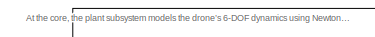
[diagram: root canvas - part 1/3, top left region]
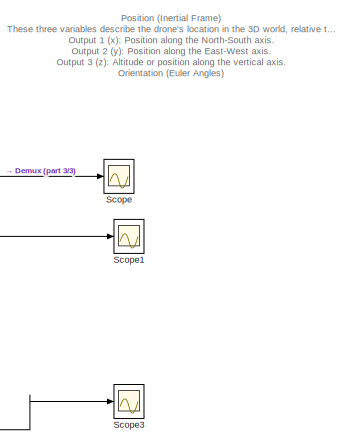
[diagram: root canvas - part 2/3, middle right region]
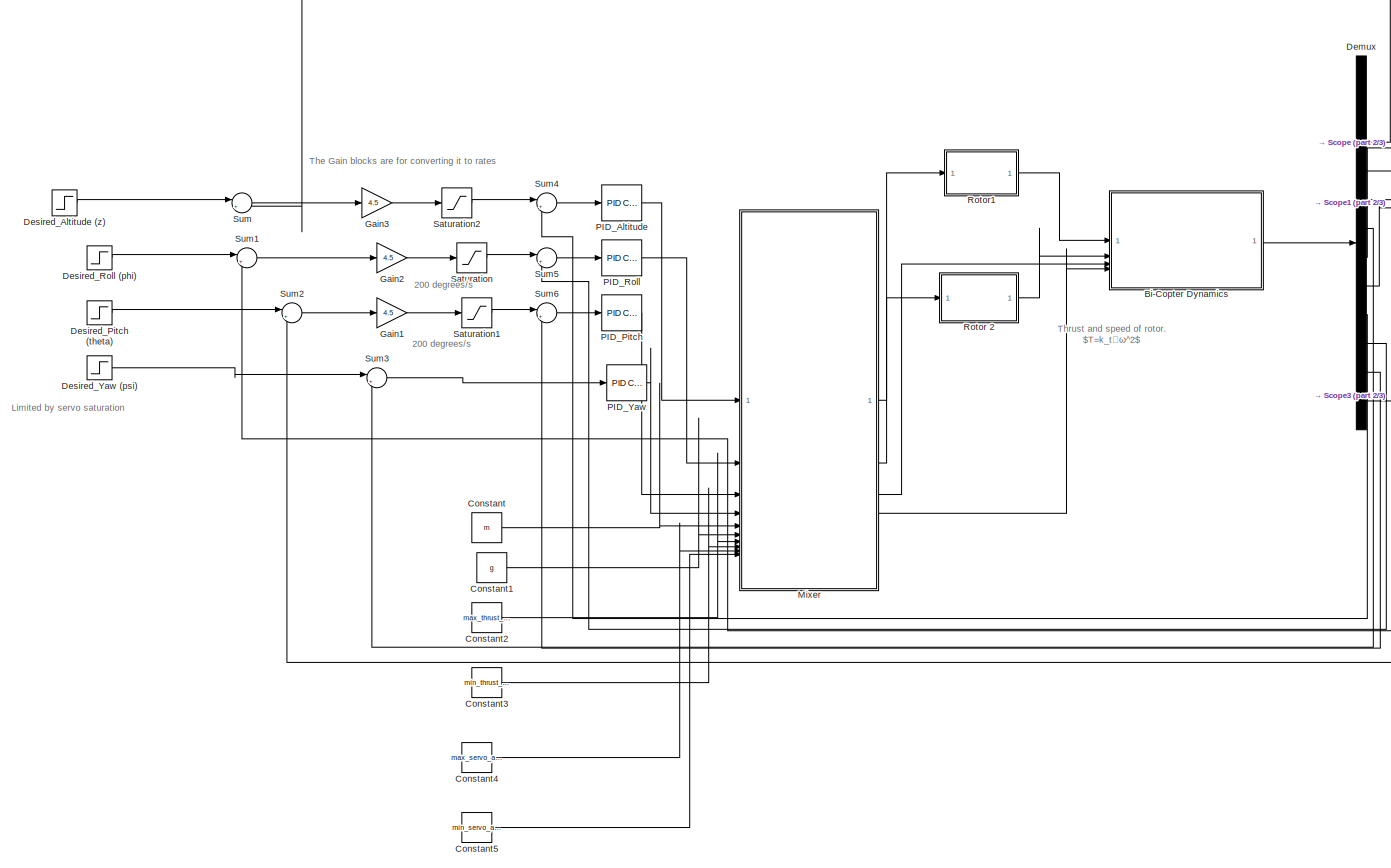
[diagram: root canvas - part 3/3, most of the canvas]
MODEL slx_90198cb23fdc
KIND model
CONFIG AbsTol = auto
CONFIG EnableMultiTasking = off
CONFIG FixedStep = auto
CONFIG MaxStep = auto
CONFIG MinStep = auto
CONFIG RelTol = 1e-3
CONFIG SampleTimeConstraint = Unconstrained
CONFIG SolverName = VariableStepAuto
CONFIG StartTime = 0.0
CONFIG StopTime = 10.0
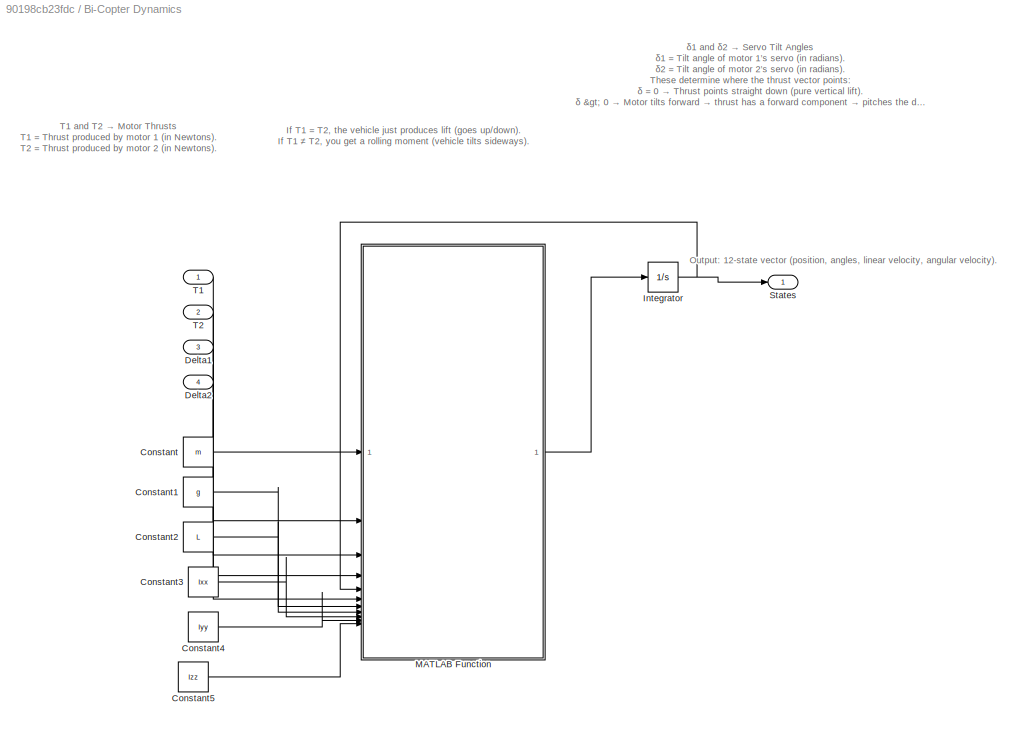
BLOCK [SubSystem] Bi-Copter Dynamics
BLOCK [Constant] Bi-Copter Dynamics/Constant
  Value = m
BLOCK [Constant] Bi-Copter Dynamics/Constant1
  Value = g
BLOCK [Constant] Bi-Copter Dynamics/Constant2
  Value = L
BLOCK [Constant] Bi-Copter Dynamics/Constant3
  Value = Ixx
BLOCK [Constant] Bi-Copter Dynamics/Constant4
  Value = Iyy
BLOCK [Constant] Bi-Copter Dynamics/Constant5
  Value = Izz
BLOCK [Inport] Bi-Copter Dynamics/Delta1
  Port = 3
BLOCK [Inport] Bi-Copter Dynamics/Delta2
  Port = 4
BLOCK [Integrator] Bi-Copter Dynamics/Integrator
  InitialCondition = initial_states
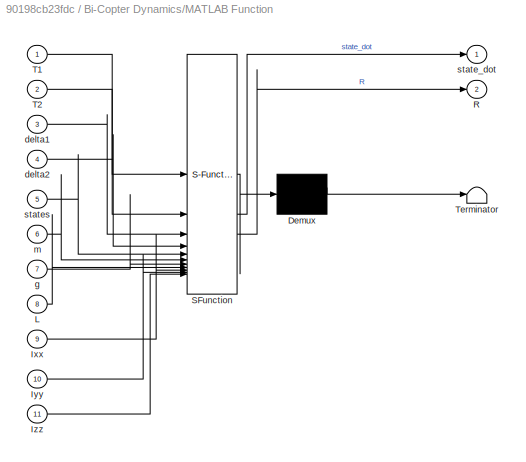
BLOCK [SubSystem] Bi-Copter Dynamics/MATLAB Function
  ErrorFcn = Stateflow.Translate.translate
  PermitHierarchicalResolution = ExplicitOnly
  SFBlockType = MATLAB Function
  TreatAsAtomicUnit = on
BLOCK [Demux] Bi-Copter Dynamics/MATLAB Function/ Demux 
  Outputs = 1
BLOCK [S-Function] Bi-Copter Dynamics/MATLAB Function/ SFunction 
  EnableBusSupport = off
  FunctionName = sf_sfun
  PortCounts = [11 3]
  SFcnIsStateOwnerBlock = off
  SFunctionDeploymentMode = off
  Tag = Stateflow S-Function 2
BLOCK [Terminator] Bi-Copter Dynamics/MATLAB Function/ Terminator 
BLOCK [Inport] Bi-Copter Dynamics/MATLAB Function/Ixx
  Port = 9
BLOCK [Inport] Bi-Copter Dynamics/MATLAB Function/Iyy
  Port = 10
BLOCK [Inport] Bi-Copter Dynamics/MATLAB Function/Izz
  Port = 11
BLOCK [Inport] Bi-Copter Dynamics/MATLAB Function/L
  Port = 8
BLOCK [Outport] Bi-Copter Dynamics/MATLAB Function/R
  Port = 2
BLOCK [Inport] Bi-Copter Dynamics/MATLAB Function/T1
BLOCK [Inport] Bi-Copter Dynamics/MATLAB Function/T2
  Port = 2
BLOCK [Inport] Bi-Copter Dynamics/MATLAB Function/delta1
  Port = 3
BLOCK [Inport] Bi-Copter Dynamics/MATLAB Function/delta2
  Port = 4
BLOCK [Inport] Bi-Copter Dynamics/MATLAB Function/g
  Port = 7
BLOCK [Inport] Bi-Copter Dynamics/MATLAB Function/m
  Port = 6
BLOCK [Outport] Bi-Copter Dynamics/MATLAB Function/state_dot
BLOCK [Inport] Bi-Copter Dynamics/MATLAB Function/states
  Port = 5
BLOCK [Outport] Bi-Copter Dynamics/States
BLOCK [Inport] Bi-Copter Dynamics/T1
BLOCK [Inport] Bi-Copter Dynamics/T2
  Port = 2
BLOCK [Constant] Constant
  Value = m
BLOCK [Constant] Constant1
  Value = g
BLOCK [Constant] Constant2
  Value = max_thrust_per_motor
BLOCK [Constant] Constant3
  Value = min_thrust_per_motor
BLOCK [Constant] Constant4
  Value = max_servo_angle
BLOCK [Constant] Constant5
  Value = min_servo_angle
BLOCK [Demux] Demux
  Outputs = 12
BLOCK [Step] Desired_Altitude (z)
  After = 500
  SampleTime = 0
  Time = 0
BLOCK [Step] Desired_Pitch (theta)
  After = 0.5
  SampleTime = 0
  Time = 0
BLOCK [Step] Desired_Roll (phi)
  After = 10
  SampleTime = 0
  Time = 0
BLOCK [Step] Desired_Yaw (psi)
  After = 2.3
  SampleTime = 0
  Time = 0
BLOCK [Gain] Gain1
  Gain = 4.5
BLOCK [Gain] Gain2
  Gain = 4.5
BLOCK [Gain] Gain3
  Gain = 4.5
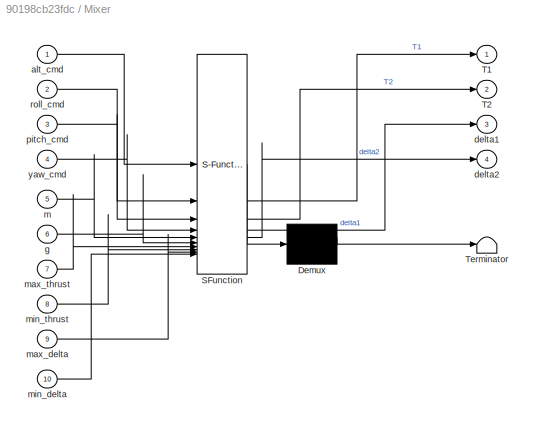
BLOCK [SubSystem] Mixer
  ErrorFcn = Stateflow.Translate.translate
  PermitHierarchicalResolution = ExplicitOnly
  SFBlockType = MATLAB Function
  TreatAsAtomicUnit = on
BLOCK [Demux] Mixer/ Demux 
  Outputs = 1
BLOCK [S-Function] Mixer/ SFunction 
  EnableBusSupport = off
  FunctionName = sf_sfun
  PortCounts = [10 5]
  SFcnIsStateOwnerBlock = off
  SFunctionDeploymentMode = off
  Tag = Stateflow S-Function 1
BLOCK [Terminator] Mixer/ Terminator 
BLOCK [Outport] Mixer/T1
BLOCK [Outport] Mixer/T2
  Port = 2
BLOCK [Inport] Mixer/alt_cmd
BLOCK [Outport] Mixer/delta1
  Port = 3
BLOCK [Outport] Mixer/delta2
  Port = 4
BLOCK [Inport] Mixer/g
  Port = 6
BLOCK [Inport] Mixer/m
  Port = 5
BLOCK [Inport] Mixer/max_delta
  Port = 9
BLOCK [Inport] Mixer/max_thrust
  Port = 7
BLOCK [Inport] Mixer/min_delta
  Port = 10
BLOCK [Inport] Mixer/min_thrust
  Port = 8
BLOCK [Inport] Mixer/pitch_cmd
  Port = 3
BLOCK [Inport] Mixer/roll_cmd
  Port = 2
BLOCK [Inport] Mixer/yaw_cmd
  Port = 4
BLOCK [Reference] PID_Altitude  REF=slpidlib/PID Controller
  LibrarySourceBlock = simulink/Continuous/PID Controller
  SourceBlock = slpidlib/PID Controller
  SourceType = PID 1dof
BLOCK [Reference] PID_Pitch  REF=slpidlib/PID Controller
  LibrarySourceBlock = simulink/Continuous/PID Controller
  SourceBlock = slpidlib/PID Controller
  SourceType = PID 1dof
BLOCK [Reference] PID_Roll  REF=slpidlib/PID Controller
  LibrarySourceBlock = simulink/Continuous/PID Controller
  SourceBlock = slpidlib/PID Controller
  SourceType = PID 1dof
BLOCK [Reference] PID_Yaw  REF=slpidlib/PID Controller
  LibrarySourceBlock = simulink/Continuous/PID Controller
  SourceBlock = slpidlib/PID Controller
  SourceType = PID 1dof
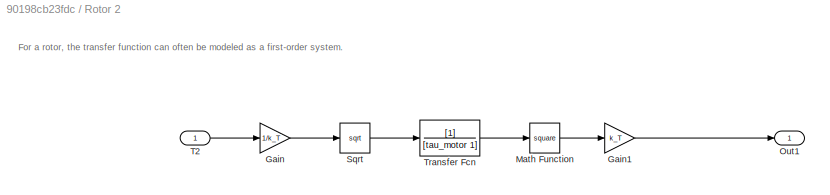
BLOCK [SubSystem] Rotor 2
BLOCK [Gain] Rotor 2/Gain
  Gain = 1/k_T
BLOCK [Gain] Rotor 2/Gain1
  Gain = k_T
BLOCK [Math] Rotor 2/Math Function
  Operator = square
BLOCK [Outport] Rotor 2/Out1
BLOCK [Sqrt] Rotor 2/Sqrt
BLOCK [Inport] Rotor 2/T2
BLOCK [TransferFcn] Rotor 2/Transfer Fcn
  Denominator = [tau_motor 1]
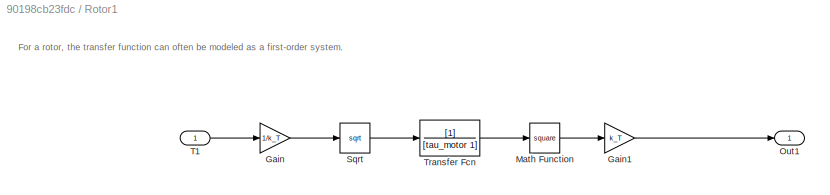
BLOCK [SubSystem] Rotor1
BLOCK [Gain] Rotor1/Gain
  Gain = 1/k_T
BLOCK [Gain] Rotor1/Gain1
  Gain = k_T
BLOCK [Math] Rotor1/Math Function
  Operator = square
BLOCK [Outport] Rotor1/Out1
BLOCK [Sqrt] Rotor1/Sqrt
BLOCK [Inport] Rotor1/T1
BLOCK [TransferFcn] Rotor1/Transfer Fcn
  Denominator = [tau_motor 1]
BLOCK [Saturate] Saturation
  LowerLimit = -3.49
  UpperLimit = 3.49
BLOCK [Saturate] Saturation1
  LowerLimit = -3.49
  UpperLimit = 3.49
BLOCK [Saturate] Saturation2
  LowerLimit = -1
  UpperLimit = 1
BLOCK [Scope] Scope
  ActiveDisplayYMaximum = 88.937365144154228
  ActiveDisplayYMinimum = -88.144858424605019
  Floating = off
  GraphicalSettings = {"Style":{"BackgroundColor":[0.12941176470588237,0.12941176470588237,0.12941176470588237],"AxesColor":[0.07058823529411765,0.07058823529411765,0.07058823529411765],"LabelsColor":[0.8509803921568627,0.8509803921568627,0.8509803921568627],"PreserveColors":false,"Visible":[true],"LineStyle":["-"],"LineWidth":[1.5],"BarWidth":[0.9],"LineColor":["auto"],"LineFaceAlpha":[1],"LineEdgeAlpha":[1],"Marker":...<+1990ch>
  MultipleDisplayCache = [{"MaxYLimMag":88.937365144154228,"MaxYLimReal":88.937365144154228,"MinYLimMag":0,"MinYLimReal":-88.144858424605019,"PlotAsMagnitudePhase":false,"ShowGrid":true,"ShowLegend":true,"Title":"%<SignalLabel>","YLabel":""}]
  NumInputPorts = 1
  ScopeFrameLocation = window
  ShowLegend = on
  WasSavedAsWebScope = on
  WindowPosition = [0.000000,35.000000,1475.000000,760.000000,]
BLOCK [Scope] Scope1
  ActiveDisplayYMaximum = 88.748617026885341
  ActiveDisplayYMinimum = -88.7441974939224
  DataLoggingVariableName = ScopeData1
  Floating = off
  GraphicalSettings = {"Style":{"BackgroundColor":[0.12941176470588237,0.12941176470588237,0.12941176470588237],"AxesColor":[0.07058823529411765,0.07058823529411765,0.07058823529411765],"LabelsColor":[0.8509803921568627,0.8509803921568627,0.8509803921568627],"PreserveColors":false,"Visible":[true],"LineStyle":["-"],"LineWidth":[1.5],"BarWidth":[0.9],"LineColor":["auto"],"LineFaceAlpha":[1],"LineEdgeAlpha":[1],"Marker":...<+1998ch>
  MultipleDisplayCache = [{"MaxYLimMag":88.748617026885341,"MaxYLimReal":88.748617026885341,"MinYLimMag":0,"MinYLimReal":-88.7441974939224,"PlotAsMagnitudePhase":false,"ShowGrid":true,"ShowLegend":false,"Title":"%<SignalLabel>","YLabel":""}]
  NumInputPorts = 1
  ScopeFrameLocation = window
  WasSavedAsWebScope = on
  WindowPosition = [0.000000,35.000000,1475.000000,760.000000,]
BLOCK [Scope] Scope3
  ActiveDisplayYMaximum = 32.830412504409331
  ActiveDisplayYMinimum = -106.7500117856095
  DataLoggingVariableName = ScopeData3
  Floating = off
  GraphicalSettings = {"Style":{"BackgroundColor":[0.12941176470588237,0.12941176470588237,0.12941176470588237],"AxesColor":[0.07058823529411765,0.07058823529411765,0.07058823529411765],"LabelsColor":[0.8509803921568627,0.8509803921568627,0.8509803921568627],"PreserveColors":false,"Visible":[true],"LineStyle":["-"],"LineWidth":[1.5],"BarWidth":[0.9],"LineColor":["auto"],"LineFaceAlpha":[1],"LineEdgeAlpha":[1],"Marker":...<+1904ch>
  MultipleDisplayCache = [{"MaxYLimMag":106.7500117856095,"MaxYLimReal":32.830412504409331,"MinYLimMag":0,"MinYLimReal":-106.7500117856095,"PlotAsMagnitudePhase":false,"ShowGrid":true,"ShowLegend":false,"Title":"%<SignalLabel>","YLabel":""}]
  NumInputPorts = 1
  ScopeFrameLocation = window
  WasSavedAsWebScope = on
  WindowPosition = [457.000000,205.000000,560.000000,420.000000,]
BLOCK [Sum] Sum
  Inputs = |+-
BLOCK [Sum] Sum1
  Inputs = |+-
BLOCK [Sum] Sum2
  Inputs = |+-
BLOCK [Sum] Sum3
  Inputs = |+-
BLOCK [Sum] Sum4
  Inputs = |+-
BLOCK [Sum] Sum5
  Inputs = |+-
BLOCK [Sum] Sum6
  Inputs = |+-
ANNOTATION (root): 200 degrees/s
ANNOTATION (root): Position (Inertial Frame) These three variables describe the drone's location in the 3D world, relative to its starting point. Output 1 ( x ): Position along the North-South axis . Output 2 ( y ): Position along the East-West axis . Output 3 ( z ): Altitude or position along the vertical axis. Orientation (Euler Angles) These three angles describe the drone's orientation or "attitude." Output 4 ( ...<+1238ch>
ANNOTATION (root): At the core, the plant subsystem models the drone’s 6-DOF dynamics using Newton–Euler equations, taking motor thrusts (T1, T2) and servo tilt angles (δ1, δ2) as inputs and outputting the 12 state variables (position, orientation, linear and angular velocities). Desired setpoints for altitude, roll, pitch, and yaw are compared against the plant feedback, and four PID controllers compute the corresp...<+493ch>
ANNOTATION (root): The Gain blocks are for converting it to rates
ANNOTATION (root): Thrust and speed of rotor. $T=k_t​⋅ω^2$
ANNOTATION (root): Limited by servo saturation
ANNOTATION Bi-Copter Dynamics: T1 and T2 → Motor Thrusts T1 = Thrust produced by motor 1 (in Newtons). T2 = Thrust produced by motor 2 (in Newtons).
ANNOTATION Bi-Copter Dynamics: δ1 and δ2 → Servo Tilt Angles δ1 = Tilt angle of motor 1’s servo (in radians). δ2 = Tilt angle of motor 2’s servo (in radians). These determine where the thrust vector points : δ = 0 → Thrust points straight down (pure vertical lift). δ > 0 → Motor tilts forward → thrust has a forward component → pitches the drone forward. δ < 0 → Motor tilts backward → pitches the drone backward.
ANNOTATION Bi-Copter Dynamics: Output: 12-state vector (position, angles, linear velocity, angular velocity).
ANNOTATION Bi-Copter Dynamics: If T1 = T2 , the vehicle just produces lift (goes up/down). If T1 ≠ T2 , you get a rolling moment (vehicle tilts sideways).
ANNOTATION Rotor 2: For a rotor, the transfer function can often be modeled as a first-order system.
ANNOTATION Rotor1: For a rotor, the transfer function can often be modeled as a first-order system.
LINE Bi-Copter Dynamics/Constant1:1 -> Bi-Copter Dynamics/MATLAB Function:7
LINE Bi-Copter Dynamics/Constant2:1 -> Bi-Copter Dynamics/MATLAB Function:8
LINE Bi-Copter Dynamics/Constant3:1 -> Bi-Copter Dynamics/MATLAB Function:9
LINE Bi-Copter Dynamics/Constant4:1 -> Bi-Copter Dynamics/MATLAB Function:10
LINE Bi-Copter Dynamics/Constant5:1 -> Bi-Copter Dynamics/MATLAB Function:11
LINE Bi-Copter Dynamics/Constant:1 -> Bi-Copter Dynamics/MATLAB Function:6
LINE Bi-Copter Dynamics/Delta1:1 -> Bi-Copter Dynamics/MATLAB Function:3
LINE Bi-Copter Dynamics/Delta2:1 -> Bi-Copter Dynamics/MATLAB Function:4
NET Bi-Copter Dynamics/Integrator:1 -> Bi-Copter Dynamics/MATLAB Function:5, Bi-Copter Dynamics/States:1
LINE Bi-Copter Dynamics/MATLAB Function:1 -> Bi-Copter Dynamics/Integrator:1
LINE Bi-Copter Dynamics/T1:1 -> Bi-Copter Dynamics/MATLAB Function:1
LINE Bi-Copter Dynamics/T2:1 -> Bi-Copter Dynamics/MATLAB Function:2
LINE Bi-Copter Dynamics:1 -> Demux:1
LINE Constant1:1 -> Mixer:6
LINE Constant2:1 -> Mixer:7
LINE Constant3:1 -> Mixer:8
LINE Constant4:1 -> Mixer:9
LINE Constant5:1 -> Mixer:10
LINE Constant:1 -> Mixer:5
LINE Demux:10 -> Sum5:2
LINE Demux:11 -> Sum6:2
LINE Demux:12 -> Scope3:1
LINE Demux:3 -> Sum:2
LINE Demux:4 -> Sum1:2
LINE Demux:5 -> Sum2:2
LINE Demux:6 -> Sum3:2
LINE Demux:7 -> Scope:1
LINE Demux:8 -> Scope1:1
LINE Demux:9 -> Sum4:2
LINE Desired_Altitude (z):1 -> Sum:1
LINE Desired_Pitch (theta):1 -> Sum2:1
LINE Desired_Roll (phi):1 -> Sum1:1
LINE Desired_Yaw (psi):1 -> Sum3:1
LINE Gain1:1 -> Saturation1:1
LINE Gain2:1 -> Saturation:1
LINE Gain3:1 -> Saturation2:1
LINE Mixer:1 -> Rotor1:1
LINE Mixer:2 -> Rotor 2:1
LINE Mixer:3 -> Bi-Copter Dynamics:3
LINE Mixer:4 -> Bi-Copter Dynamics:4
LINE PID_Altitude:1 -> Mixer:1
LINE PID_Pitch:1 -> Mixer:3
LINE PID_Roll:1 -> Mixer:2
LINE PID_Yaw:1 -> Mixer:4
LINE Rotor 2/Gain1:1 -> Rotor 2/Out1:1
LINE Rotor 2/Gain:1 -> Rotor 2/Sqrt:1
LINE Rotor 2/Math Function:1 -> Rotor 2/Gain1:1
LINE Rotor 2/Sqrt:1 -> Rotor 2/Transfer Fcn:1
LINE Rotor 2/T2:1 -> Rotor 2/Gain:1
LINE Rotor 2/Transfer Fcn:1 -> Rotor 2/Math Function:1
LINE Rotor 2:1 -> Bi-Copter Dynamics:2
LINE Rotor1/Gain1:1 -> Rotor1/Out1:1
LINE Rotor1/Gain:1 -> Rotor1/Sqrt:1
LINE Rotor1/Math Function:1 -> Rotor1/Gain1:1
LINE Rotor1/Sqrt:1 -> Rotor1/Transfer Fcn:1
LINE Rotor1/T1:1 -> Rotor1/Gain:1
LINE Rotor1/Transfer Fcn:1 -> Rotor1/Math Function:1
LINE Rotor1:1 -> Bi-Copter Dynamics:1
LINE Saturation1:1 -> Sum6:1
LINE Saturation2:1 -> Sum4:1
LINE Saturation:1 -> Sum5:1
LINE Sum1:1 -> Gain2:1
LINE Sum2:1 -> Gain1:1
LINE Sum3:1 -> PID_Yaw:1
LINE Sum4:1 -> PID_Altitude:1
LINE Sum5:1 -> PID_Roll:1
LINE Sum6:1 -> PID_Pitch:1
LINE Sum:1 -> Gain3:1
note: NET lines group one-source signal fan-out (src -> all destinations, sorted); 1:1 wires keep LINE
CHART Mixer states=1 transitions=1
  STATE_LABEL 'eML_blk_kernel()'
  STATE_LABEL 'SCRIPT:\nfunction [T1, T2, delta1, delta2] = fcn(alt_cmd, roll_cmd, pitch_cmd, yaw_cmd, m, g, max_thrust, min_thrust, max_delta, min_delta)\nbase_thrust = m*g;\ntotal_thrust = base_thrust + alt_cmd;\nT1 = total_thrust/2 - roll_cmd;\nT2 = total_thrust/2 + roll_cmd;\ndelta1 = pitch_cmd - yaw_cmd;\ndelta2 = pitch_cmd + yaw_cmd;\nT1 = max(min_thrust, min(T1, max_thrust));\nT2 = max(min_thrust, min(T2, max_thru...<+107ch>'
CHART Bi-Copter Dynamics/MATLAB Function states=1 transitions=1
  STATE_LABEL 'eML_blk_kernel()'
  STATE_LABEL 'SCRIPT:\nfunction [state_dot, R] = fcn(T1, T2, delta1, delta2, states, m, g, L, Ixx, Iyy, Izz)\nphi=states(4); theta=states(5); psi=states(6); \nu=states(7); v=states(8); w=states(9);\np=states(10); q=states(11); r=states(12);\ncphi = cos(phi); sphi = sin(phi);\ncthe = cos(theta); sthe = sin(theta);\ncpsi = cos(psi); spsi = sin(psi);\nR = [cthe*cpsi, sphi*sthe*cpsi-cphi*spsi, cphi*sthe*cpsi+sphi*spsi;\n   ...<+815ch>'
CHART  states=0 transitions=0
CHART  states=0 transitions=0
